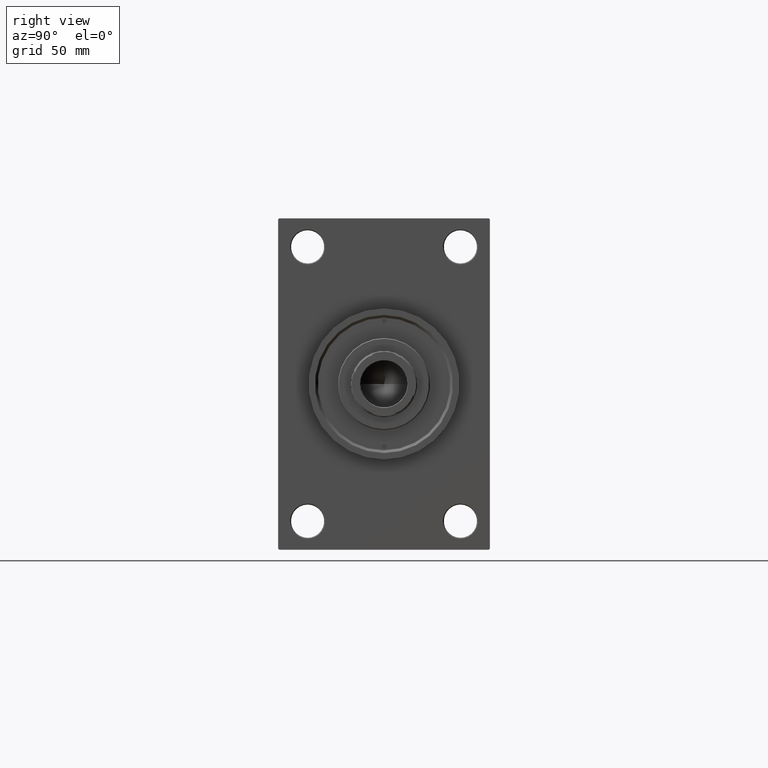
[diagram: clean part render]
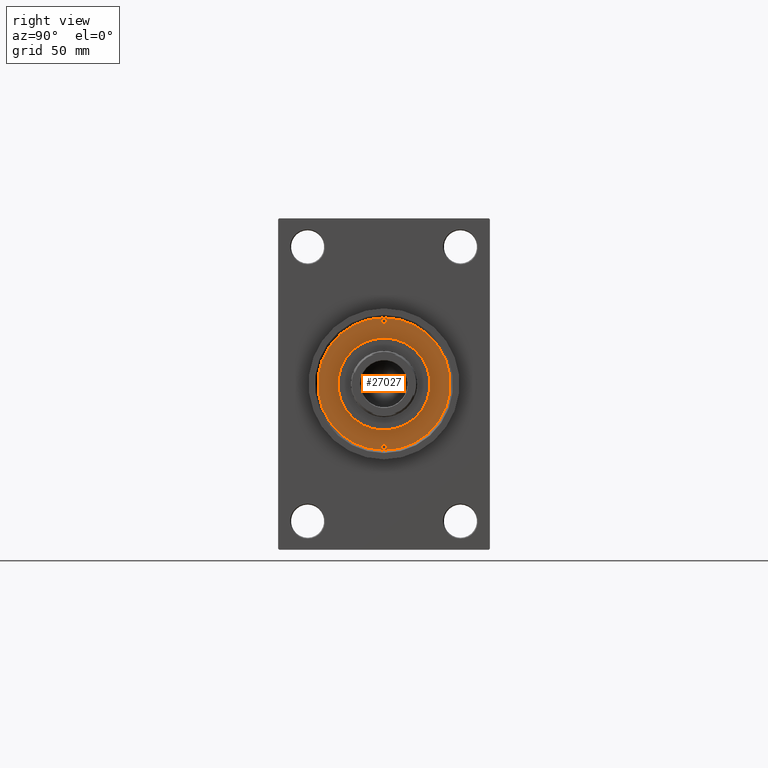
[diagram: same view with one face highlighted and labeled with its STEP entity id]
A machine part, right view. The second image highlights one B-rep face of the part: STEP entity #27027.
In plain terms, the highlighted planar face has unit normal (1, -0, -0).
Its self-contained STEP definition (entity closure, byte-faithful):
#421 = AXIS2_PLACEMENT_3D ( 'NONE', #4417, #25702, #41224 ) ;
#434 = DIRECTION ( 'NONE',  ( 1.000000000000000000, 0.000000000000000000, 0.000000000000000000 ) ) ;
#730 = DIRECTION ( 'NONE',  ( 1.000000000000000000, 0.000000000000000000, 0.000000000000000000 ) ) ;
#887 = VERTEX_POINT ( 'NONE', #25796 ) ;
#2538 = DIRECTION ( 'NONE',  ( -0.000000000000000000, -0.000000000000000000, 1.000000000000000000 ) ) ;
#2624 = AXIS2_PLACEMENT_3D ( 'NONE', #12848, #5333, #42376 ) ;
#2977 = CARTESIAN_POINT ( 'NONE',  ( 34.25000000000000000, 0.000000000000000000, 43.25999999999999801 ) ) ;
#3025 = VERTEX_POINT ( 'NONE', #26211 ) ;
#3461 = DIRECTION ( 'NONE',  ( -0.000000000000000000, -0.000000000000000000, 1.000000000000000000 ) ) ;
#4098 = EDGE_LOOP ( 'NONE', ( #28204, #15576 ) ) ;
#4417 = CARTESIAN_POINT ( 'NONE',  ( 0.000000000000000000, 0.000000000000000000, 43.25999999999999801 ) ) ;
#5333 = DIRECTION ( 'NONE',  ( 0.000000000000000000, 0.000000000000000000, 1.000000000000000000 ) ) ;
#5384 = FACE_BOUND ( 'NONE', #4098, .T. ) ;
#5598 = VERTEX_POINT ( 'NONE', #12418 ) ;
#6096 = DIRECTION ( 'NONE',  ( 1.000000000000000000, 0.000000000000000000, -0.000000000000000000 ) ) ;
#9108 = EDGE_CURVE ( 'NONE', #29924, #887, #31848, .T. ) ;
#10361 = CIRCLE ( 'NONE', #2624, 25.00000000000000000 ) ;
#10520 = DIRECTION ( 'NONE',  ( 1.000000000000000000, 0.000000000000000000, 0.000000000000000000 ) ) ;
#11160 = DIRECTION ( 'NONE',  ( 0.000000000000000000, 0.000000000000000000, 1.000000000000000000 ) ) ;
#11769 = AXIS2_PLACEMENT_3D ( 'NONE', #27872, #35634, #6096 ) ;
#11919 = VERTEX_POINT ( 'NONE', #26929 ) ;
#12418 = CARTESIAN_POINT ( 'NONE',  ( -35.50000000000000711, 1.530808498934193050E-16, 43.25999999999999801 ) ) ;
#12848 = CARTESIAN_POINT ( 'NONE',  ( 0.000000000000000000, 0.000000000000000000, 43.25999999999999801 ) ) ;
#13477 = CARTESIAN_POINT ( 'NONE',  ( 25.00000000000000000, 3.061616997868383043E-15, 43.25999999999999801 ) ) ;
#14416 = CARTESIAN_POINT ( 'NONE',  ( 0.000000000000000000, 0.000000000000000000, 43.25999999999999801 ) ) ;
#14605 = ORIENTED_EDGE ( 'NONE', *, *, #26496, .T. ) ;
#15576 = ORIENTED_EDGE ( 'NONE', *, *, #9108, .F. ) ;
#15636 = ORIENTED_EDGE ( 'NONE', *, *, #38569, .T. ) ;
#15672 = DIRECTION ( 'NONE',  ( -0.000000000000000000, -0.000000000000000000, 1.000000000000000000 ) ) ;
#15936 = ORIENTED_EDGE ( 'NONE', *, *, #40334, .F. ) ;
#17016 = EDGE_LOOP ( 'NONE', ( #27441, #15936 ) ) ;
#17478 = CARTESIAN_POINT ( 'NONE',  ( 33.00000000000000000, 1.530808498934193050E-16, 43.25999999999999801 ) ) ;
#18809 = CARTESIAN_POINT ( 'NONE',  ( -34.25000000000000000, 0.000000000000000000, 43.25999999999999801 ) ) ;
#19118 = EDGE_CURVE ( 'NONE', #5598, #3025, #37872, .T. ) ;
#19938 = ORIENTED_EDGE ( 'NONE', *, *, #19118, .F. ) ;
#19947 = CARTESIAN_POINT ( 'NONE',  ( -36.00000000000000000, 0.000000000000000000, 43.25999999999999801 ) ) ;
#21087 = VERTEX_POINT ( 'NONE', #31590 ) ;
#21628 = CARTESIAN_POINT ( 'NONE',  ( 34.25000000000000000, 0.000000000000000000, 43.25999999999999801 ) ) ;
#22575 = AXIS2_PLACEMENT_3D ( 'NONE', #14416, #40083, #39604 ) ;
#23998 = PLANE ( 'NONE',  #11769 ) ;
#25702 = DIRECTION ( 'NONE',  ( 0.000000000000000000, 0.000000000000000000, 1.000000000000000000 ) ) ;
#25796 = CARTESIAN_POINT ( 'NONE',  ( -25.00000000000000000, 0.000000000000000000, 43.25999999999999801 ) ) ;
#26211 = CARTESIAN_POINT ( 'NONE',  ( -33.00000000000000000, 0.000000000000000000, 43.25999999999999801 ) ) ;
#26496 = EDGE_CURVE ( 'NONE', #43088, #11919, #41108, .T. ) ;
#26774 = EDGE_LOOP ( 'NONE', ( #35818, #19938 ) ) ;
#26929 = CARTESIAN_POINT ( 'NONE',  ( 36.00000000000000000, 4.408728476930470856E-15, 43.25999999999999801 ) ) ;
#27027 = ADVANCED_FACE ( 'NONE', ( #32002, #42427, #5384, #35172 ), #23998, .T. ) ;
#27441 = ORIENTED_EDGE ( 'NONE', *, *, #44811, .F. ) ;
#27872 = CARTESIAN_POINT ( 'NONE',  ( 0.000000000000000000, 0.000000000000000000, 43.25999999999999801 ) ) ;
#28204 = ORIENTED_EDGE ( 'NONE', *, *, #47572, .F. ) ;
#28422 = CIRCLE ( 'NONE', #45449, 1.250000000000001110 ) ;
#29051 = CIRCLE ( 'NONE', #38348, 1.250000000000001110 ) ;
#29124 = DIRECTION ( 'NONE',  ( -0.000000000000000000, -0.000000000000000000, 1.000000000000000000 ) ) ;
#29842 = DIRECTION ( 'NONE',  ( 1.000000000000000000, 0.000000000000000000, 0.000000000000000000 ) ) ;
#29924 = VERTEX_POINT ( 'NONE', #13477 ) ;
#31554 = EDGE_CURVE ( 'NONE', #3025, #5598, #32767, .T. ) ;
#31590 = CARTESIAN_POINT ( 'NONE',  ( 35.50000000000000711, 0.000000000000000000, 43.25999999999999801 ) ) ;
#31848 = CIRCLE ( 'NONE', #22575, 25.00000000000000000 ) ;
#32002 = FACE_BOUND ( 'NONE', #26774, .T. ) ;
#32767 = CIRCLE ( 'NONE', #47449, 1.250000000000001110 ) ;
#33223 = AXIS2_PLACEMENT_3D ( 'NONE', #33737, #29124, #33494 ) ;
#33494 = DIRECTION ( 'NONE',  ( 1.000000000000000000, 0.000000000000000000, 0.000000000000000000 ) ) ;
#33737 = CARTESIAN_POINT ( 'NONE',  ( -34.25000000000000000, 0.000000000000000000, 43.25999999999999801 ) ) ;
#35172 = FACE_OUTER_BOUND ( 'NONE', #41703, .T. ) ;
#35634 = DIRECTION ( 'NONE',  ( 0.000000000000000000, 0.000000000000000000, 1.000000000000000000 ) ) ;
#35818 = ORIENTED_EDGE ( 'NONE', *, *, #31554, .F. ) ;
#37872 = CIRCLE ( 'NONE', #33223, 1.250000000000001110 ) ;
#38348 = AXIS2_PLACEMENT_3D ( 'NONE', #21628, #2538, #10520 ) ;
#38569 = EDGE_CURVE ( 'NONE', #11919, #43088, #41424, .T. ) ;
#39604 = DIRECTION ( 'NONE',  ( 1.000000000000000000, 0.000000000000000000, 0.000000000000000000 ) ) ;
#40083 = DIRECTION ( 'NONE',  ( 0.000000000000000000, 0.000000000000000000, 1.000000000000000000 ) ) ;
#40334 = EDGE_CURVE ( 'NONE', #41800, #21087, #29051, .T. ) ;
#41108 = CIRCLE ( 'NONE', #47275, 36.00000000000000000 ) ;
#41224 = DIRECTION ( 'NONE',  ( 1.000000000000000000, 0.000000000000000000, 0.000000000000000000 ) ) ;
#41424 = CIRCLE ( 'NONE', #421, 36.00000000000000000 ) ;
#41703 = EDGE_LOOP ( 'NONE', ( #14605, #15636 ) ) ;
#41800 = VERTEX_POINT ( 'NONE', #17478 ) ;
#42376 = DIRECTION ( 'NONE',  ( 1.000000000000000000, 0.000000000000000000, 0.000000000000000000 ) ) ;
#42427 = FACE_BOUND ( 'NONE', #17016, .T. ) ;
#43088 = VERTEX_POINT ( 'NONE', #19947 ) ;
#44325 = CARTESIAN_POINT ( 'NONE',  ( 0.000000000000000000, 0.000000000000000000, 43.25999999999999801 ) ) ;
#44811 = EDGE_CURVE ( 'NONE', #21087, #41800, #28422, .T. ) ;
#45449 = AXIS2_PLACEMENT_3D ( 'NONE', #2977, #3461, #29842 ) ;
#47275 = AXIS2_PLACEMENT_3D ( 'NONE', #44325, #11160, #730 ) ;
#47449 = AXIS2_PLACEMENT_3D ( 'NONE', #18809, #15672, #434 ) ;
#47572 = EDGE_CURVE ( 'NONE', #887, #29924, #10361, .T. ) ;